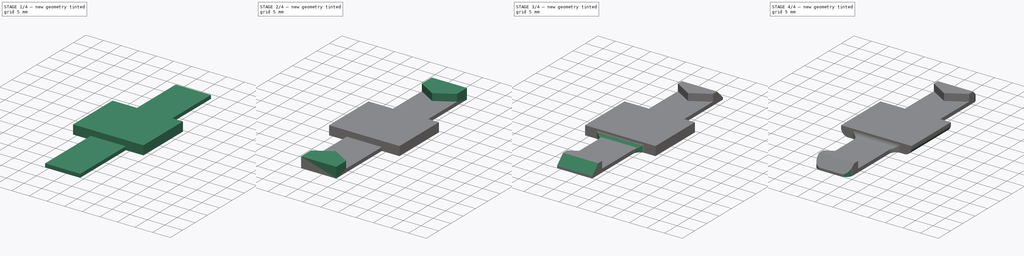
[diagram: build sequence overview — one tinted view per stage of 4, left to right]
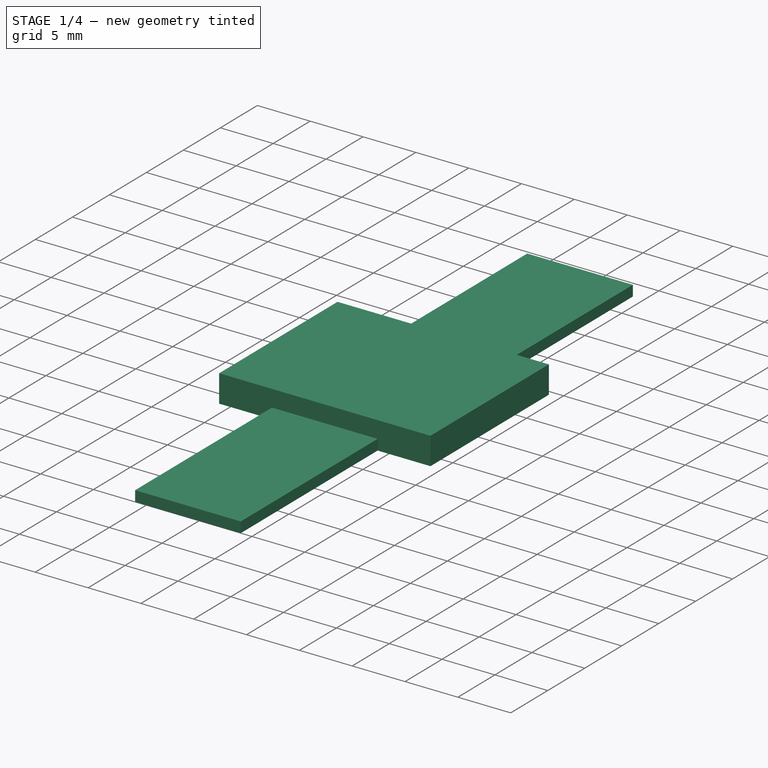
[diagram: stage 1 of 4 — iso view after this stage's code; geometry added in this stage tinted green]
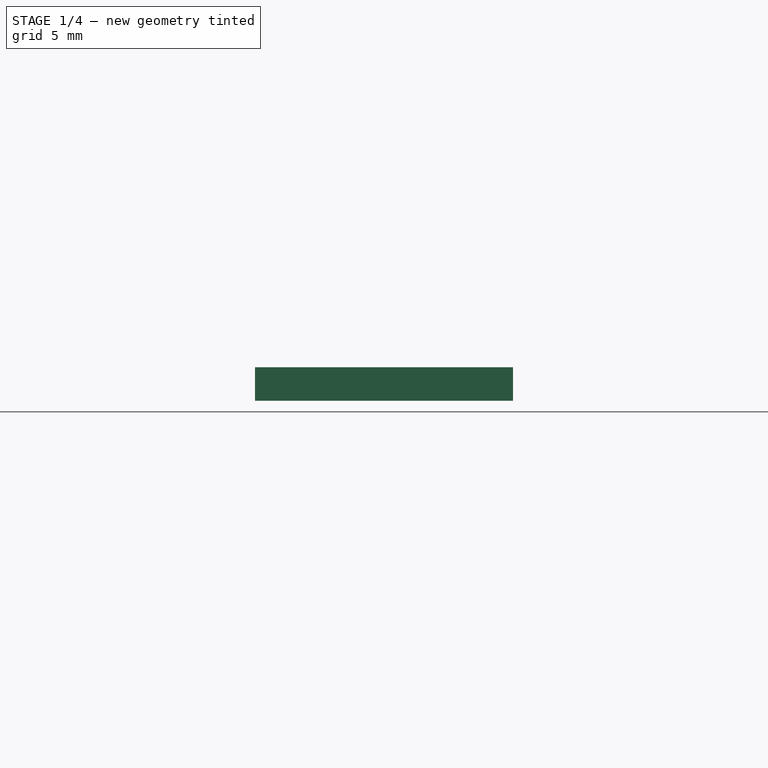
[diagram: stage 1 of 4 — front view after this stage's code; geometry added in this stage tinted green]
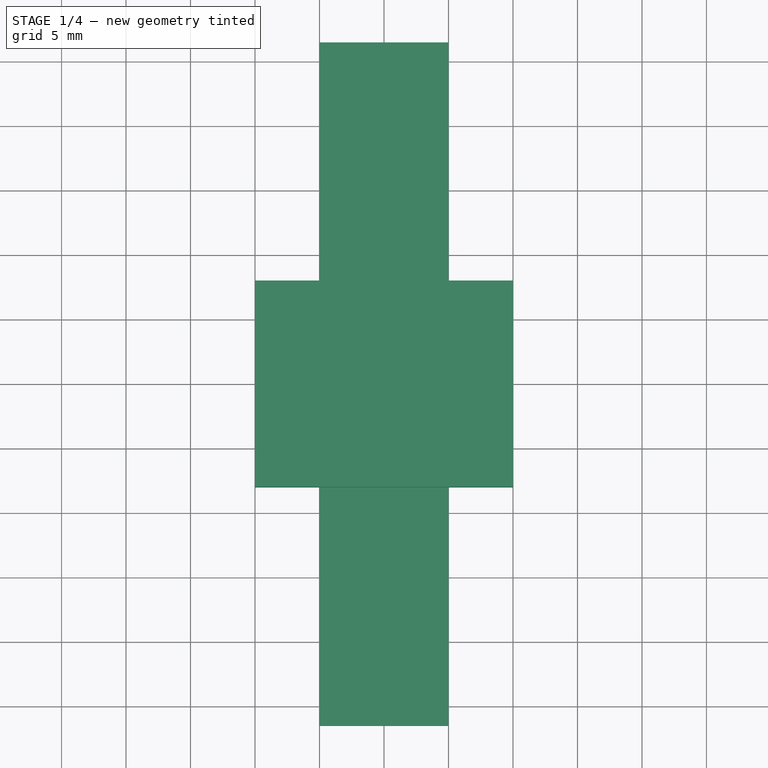
[diagram: stage 1 of 4 — top view after this stage's code; geometry added in this stage tinted green]
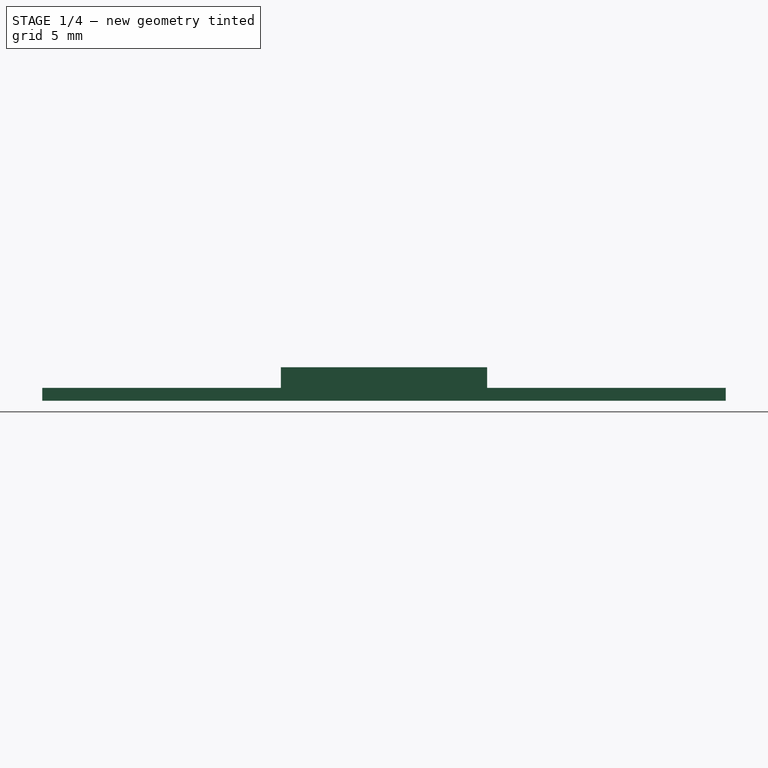
[diagram: stage 1 of 4 — right view after this stage's code; geometry added in this stage tinted green]
FCSTD DOCUMENT  (FreeCAD 0.18.3R)
Label: ipico-speedcross
License: CC-BY 3.0
LicenseURL: http://creativecommons.org/licenses/by/3.0/
objects: PartDesign::Fillet×4, Sketcher::SketchObject×3, PartDesign::Pad×3, PartDesign::Mirrored×1, PartDesign::Chamfer×1, PartDesign::Body×1, App::Part×1
note: 16 computed .brp shape members not serialized (recipe doc carries the construction recipe); baked Part::Feature solids carry a one-line shape summary decoded from their .brp

FEATURE [Sketcher::SketchObject] Sketch
  MapMode = 5
  Support = -> [XY_Plane001]
  sketch-geometry (12):
    g0: LineSegment StartX=-10 StartY=8 StartZ=0 EndX=-10 EndY=-8 EndZ=0
    g1: LineSegment StartX=-10 StartY=-8 StartZ=0 EndX=-5 EndY=-8 EndZ=0
    g2: LineSegment StartX=-5 StartY=-8 StartZ=0 EndX=-5 EndY=-26.5 EndZ=0
    g3: LineSegment StartX=-5 StartY=-26.5 StartZ=0 EndX=5 EndY=-26.5 EndZ=0
    g4: LineSegment StartX=5 StartY=-26.5 StartZ=0 EndX=5 EndY=-8 EndZ=0
    g5: LineSegment StartX=5 StartY=-8 StartZ=0 EndX=10 EndY=-8 EndZ=0
    g6: LineSegment StartX=10 StartY=-8 StartZ=0 EndX=10 EndY=8 EndZ=0
    g7: LineSegment StartX=10 StartY=8 StartZ=0 EndX=5 EndY=8 EndZ=0
    g8: LineSegment StartX=5 StartY=8 StartZ=0 EndX=5 EndY=26.5 EndZ=0
    g9: LineSegment StartX=5 StartY=26.5 StartZ=0 EndX=-5 EndY=26.5 EndZ=0
    g10: LineSegment StartX=-5 StartY=26.5 StartZ=0 EndX=-5 EndY=8 EndZ=0
    g11: LineSegment StartX=-5 StartY=8 StartZ=0 EndX=-10 EndY=8 EndZ=0
  constraints (34):
    c: Coincident(g0,g1)
    c: Horizontal(g1)
    c: Coincident(g1,g2)
    c: Vertical(g2)
    c: Coincident(g2,g3)
    c: Coincident(g3,g4)
    c: Vertical(g4)
    c: Coincident(g4,g5)
    c: Horizontal(g5)
    c: Coincident(g5,g6)
    c: Vertical(g6)
    c: Coincident(g6,g7)
    c: Horizontal(g7)
    c: Coincident(g7,g8)
    c: Vertical(g8)
    c: Coincident(g8,g9)
    c: Horizontal(g9)
    c: Coincident(g9,g10)
    c: Vertical(g10)
    c: Coincident(g10,g11)
    c: Coincident(g11,g0)
    c: Horizontal(g11)
    c: Symmetric(g1,g4,g-2)
    c: Equal(g1,g11)
    c: Equal(g11,g7)
    c: Equal(g7,g5)
    c: Equal(g10,g8)
    c: Equal(g8,g4)
    c: Equal(g4,g2)
    c: DistanceX(g9) = -10
    c: DistanceY(g9,g2) = -53
    c: DistanceY(g0) = -16
    c: Symmetric(g0,g0,g-1)
    c: DistanceX(g0,g6) = 20
FEATURE [PartDesign::Pad] Pad
  Length = 1
  Length2 = 100
  Profile = -> Sketch
  Refine = true
  Type = 0
FEATURE [Sketcher::SketchObject] Sketch001
  ExternalGeometry = -> [Pad]
  MapMode = 5
  Placement = pos=(0,0,1) rot=(0,0,1;0rad)
  Support = -> [Pad]
  sketch-geometry (4):
    g0: LineSegment StartX=-10 StartY=-8 StartZ=0 EndX=10 EndY=-8 EndZ=0
    g1: LineSegment StartX=10 StartY=-8 StartZ=0 EndX=10 EndY=8 EndZ=0
    g2: LineSegment StartX=10 StartY=8 StartZ=0 EndX=-10 EndY=8 EndZ=0
    g3: LineSegment StartX=-10 StartY=8 StartZ=0 EndX=-10 EndY=-8 EndZ=0
  constraints (10):
    c: Coincident(g0,g1)
    c: Coincident(g1,g2)
    c: Coincident(g2,g3)
    c: Coincident(g3,g0)
    c: Horizontal(g0)
    c: Horizontal(g2)
    c: Vertical(g1)
    c: Vertical(g3)
    c: Coincident(g0,g-3)
    c: Coincident(g1,g-4)
FEATURE [PartDesign::Pad] Pad001
  BaseFeature = -> Pad
  Length = 1.6
  Length2 = 100
  Profile = -> Sketch001
  Refine = true
  Type = 0
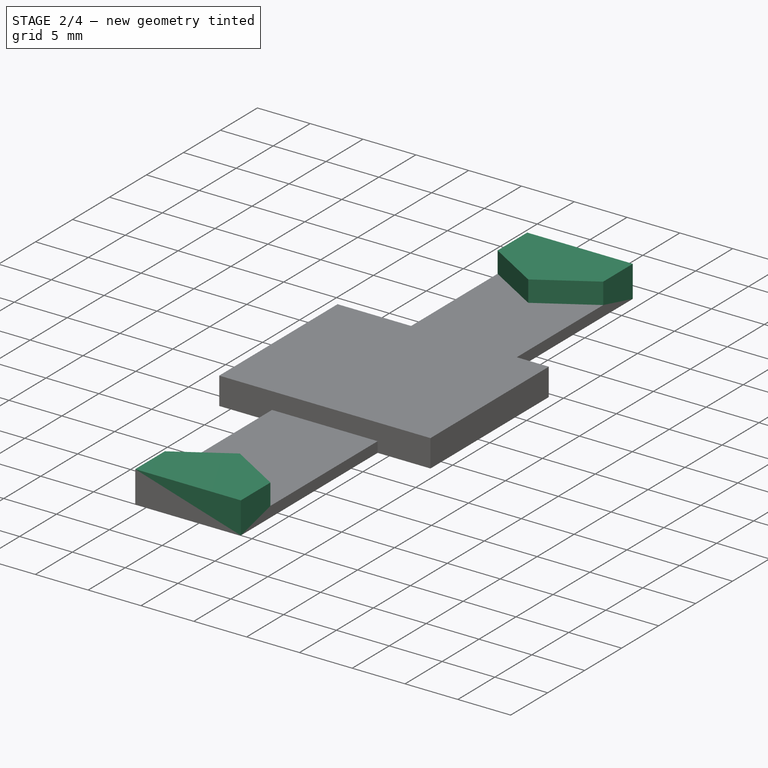
[diagram: stage 2 of 4 — iso view after this stage's code; geometry added in this stage tinted green]
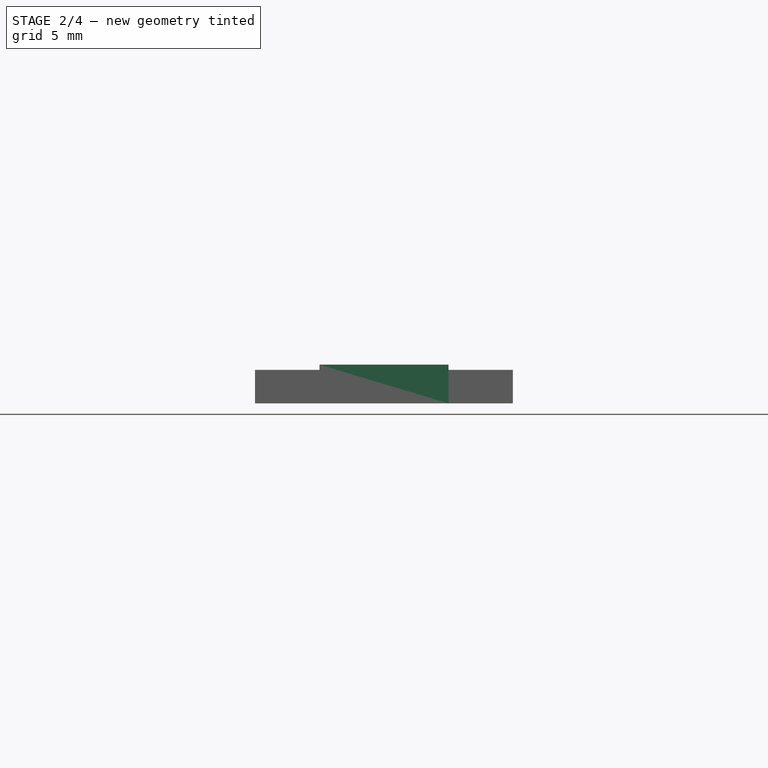
[diagram: stage 2 of 4 — front view after this stage's code; geometry added in this stage tinted green]
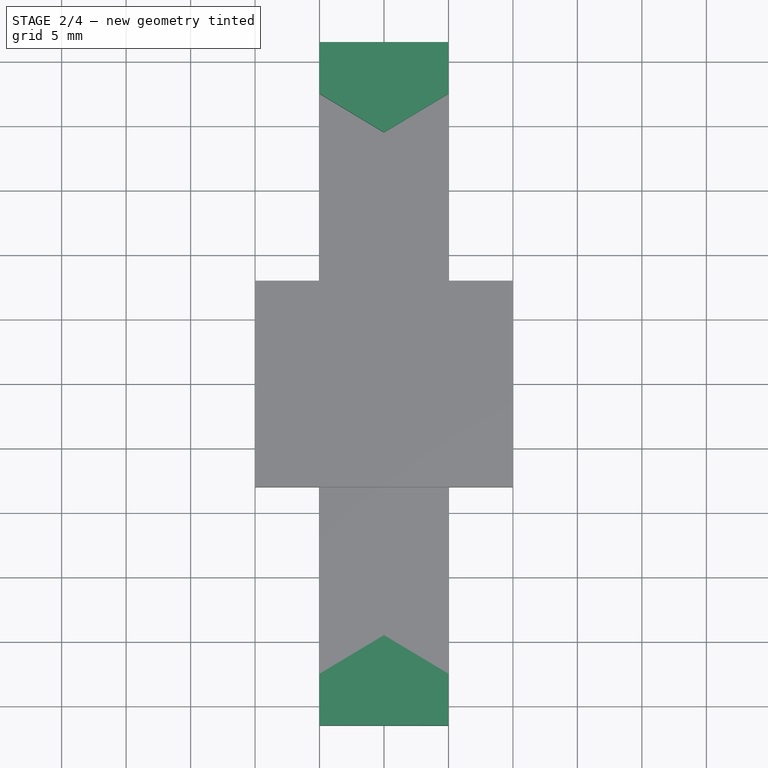
[diagram: stage 2 of 4 — top view after this stage's code; geometry added in this stage tinted green]
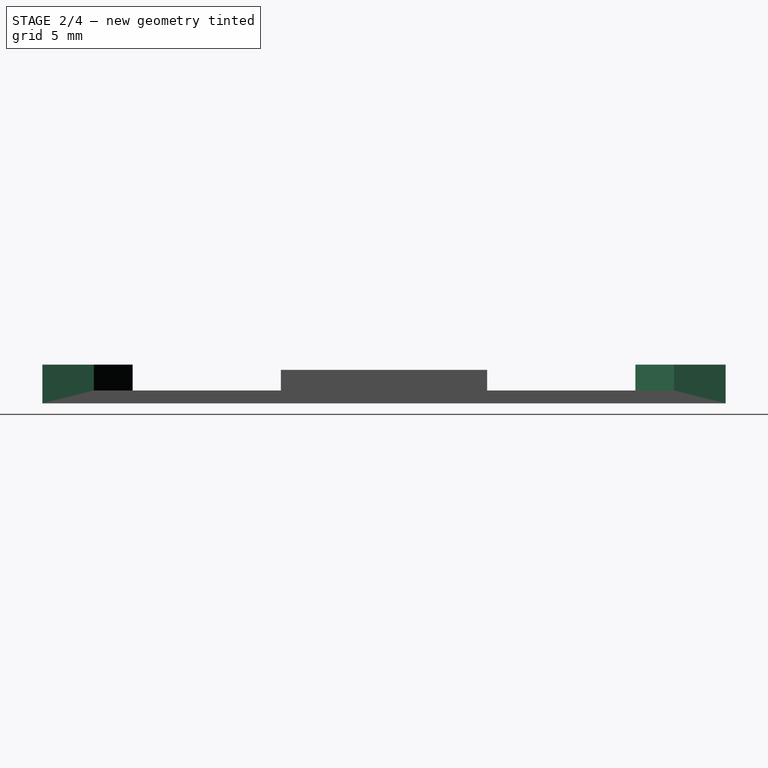
[diagram: stage 2 of 4 — right view after this stage's code; geometry added in this stage tinted green]
FEATURE [Sketcher::SketchObject] Sketch002
  ExternalGeometry = -> [Pad001]
  MapMode = 5
  Placement = pos=(0,0,1) rot=(0,0,1;0rad)
  Support = -> [Pad001]
  sketch-geometry (5):
    g0: LineSegment StartX=-5 StartY=26.5 StartZ=0 EndX=5 EndY=26.5 EndZ=0
    g1: LineSegment StartX=5 StartY=26.5 StartZ=0 EndX=5 EndY=22.5 EndZ=0
    g2: LineSegment StartX=5 StartY=22.5 StartZ=0 EndX=0 EndY=19.5 EndZ=0
    g3: LineSegment StartX=0 StartY=19.5 StartZ=0 EndX=-5 EndY=22.5 EndZ=0
    g4: LineSegment StartX=-5 StartY=26.5 StartZ=0 EndX=-5 EndY=22.5 EndZ=0
  constraints (13):
    c: Coincident(g0,g1)
    c: Coincident(g1,g2)
    c: Coincident(g2,g3)
    c: DistanceY(g4) = -4
    c: DistanceY(g2,g3) = 3
    c: PointOnObject(g2,g-2)
    c: Coincident(g0,g-4)
    c: Coincident(g0,g4)
    c: Coincident(g4,g3)
    c: Coincident(g0,g-3)
    c: Vertical(g4)
    c: Vertical(g1)
    c: Equal(g2,g3)
FEATURE [PartDesign::Pad] Pad002
  BaseFeature = -> Pad001
  Length = 2
  Length2 = 100
  Profile = -> Sketch002
  Refine = true
  Type = 0
FEATURE [PartDesign::Mirrored] Mirrored
  BaseFeature = -> Pad002
  MirrorPlane = -> Sketch002 [H_Axis]
  Originals = -> [Pad002]
  Refine = true
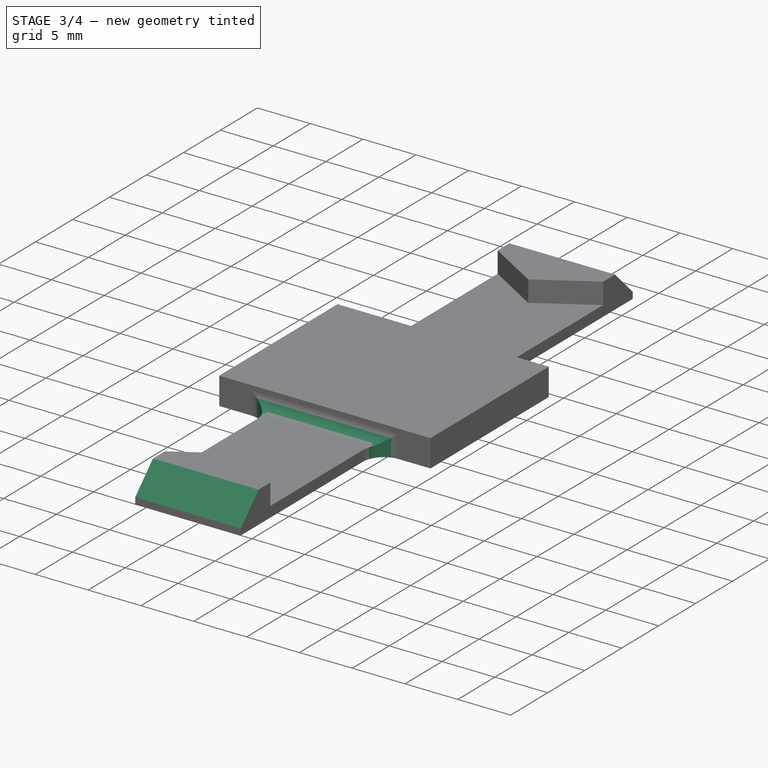
[diagram: stage 3 of 4 — iso view after this stage's code; geometry added in this stage tinted green]
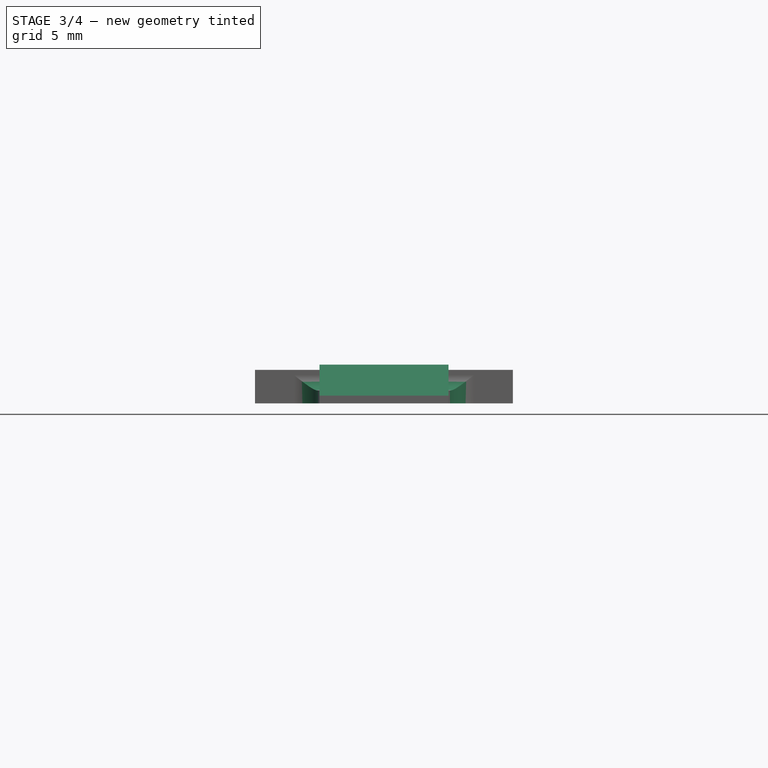
[diagram: stage 3 of 4 — front view after this stage's code; geometry added in this stage tinted green]
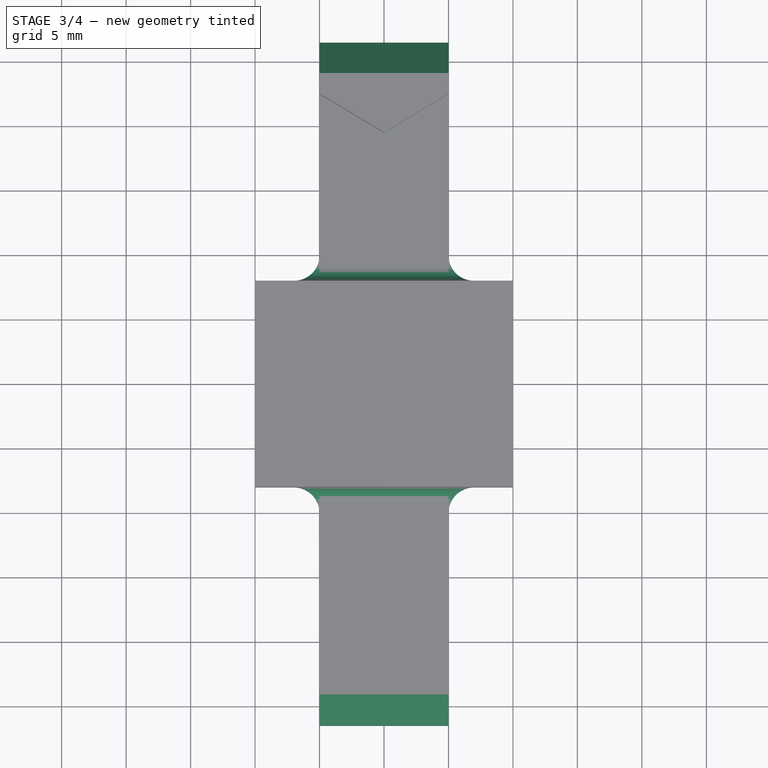
[diagram: stage 3 of 4 — top view after this stage's code; geometry added in this stage tinted green]
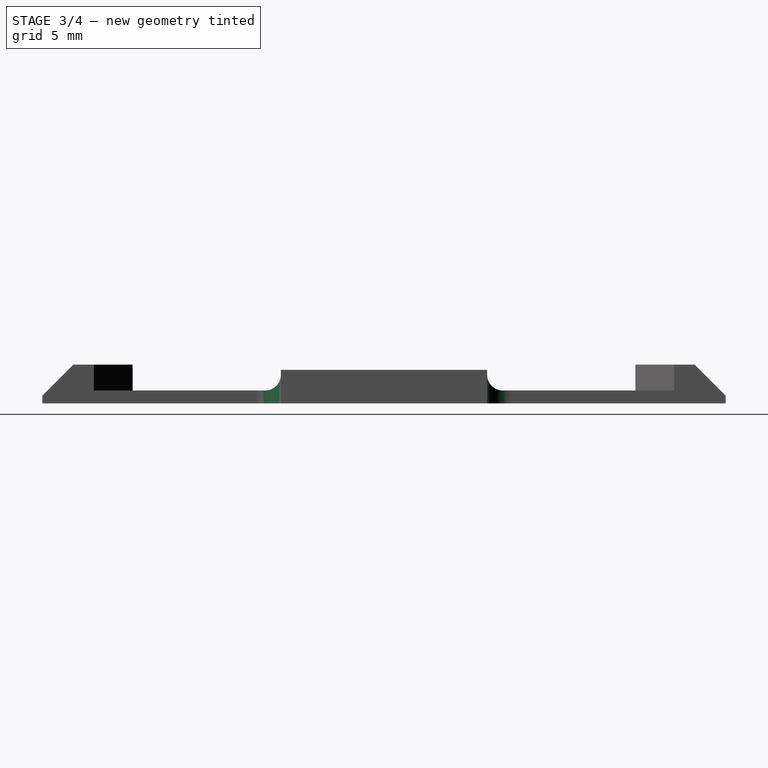
[diagram: stage 3 of 4 — right view after this stage's code; geometry added in this stage tinted green]
FEATURE [PartDesign::Fillet] Fillet
  Base = -> Mirrored [Edge18,Edge16,Edge23,Edge25]
  BaseFeature = -> Mirrored
  Radius = 2
FEATURE [PartDesign::Chamfer] Chamfer
  Base = -> Fillet [Edge54,Edge41]
  BaseFeature = -> Fillet
  Size = 2.4
FEATURE [PartDesign::Fillet] Fillet001
  Base = -> Chamfer [Edge51,Edge38]
  BaseFeature = -> Chamfer
  Radius = 1.2
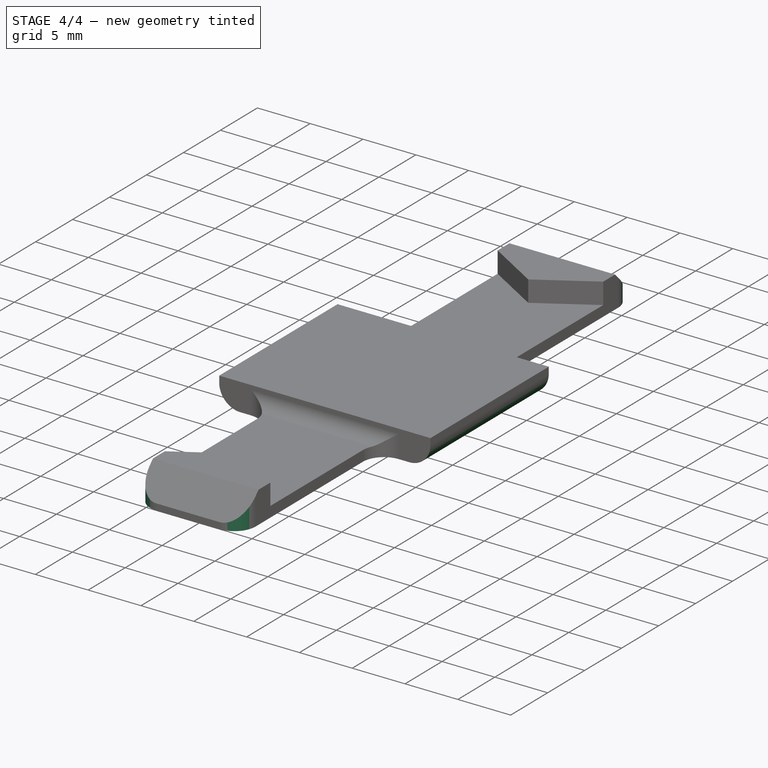
[diagram: stage 4 of 4 — iso view after this stage's code; geometry added in this stage tinted green]
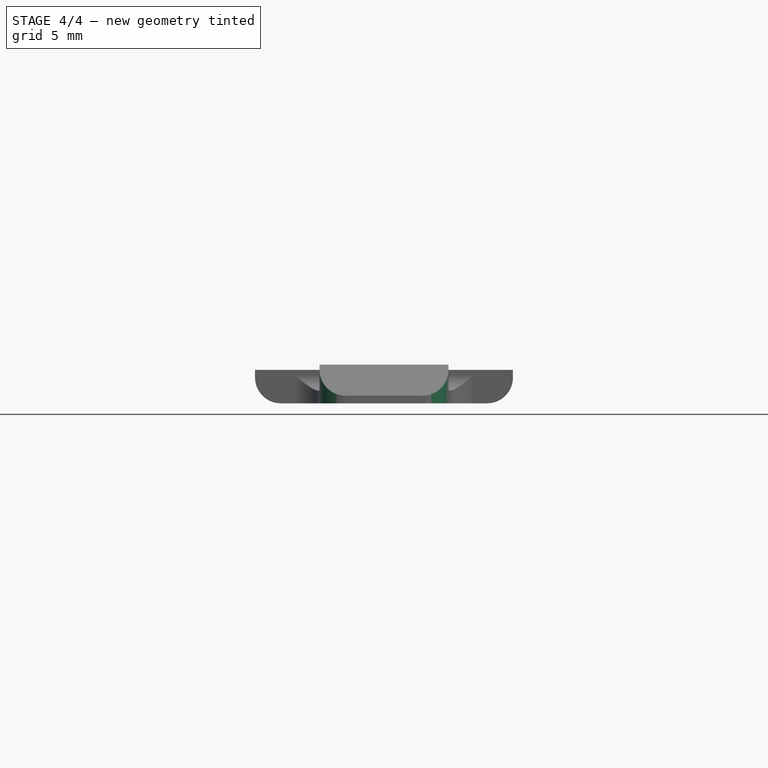
[diagram: stage 4 of 4 — front view after this stage's code; geometry added in this stage tinted green]
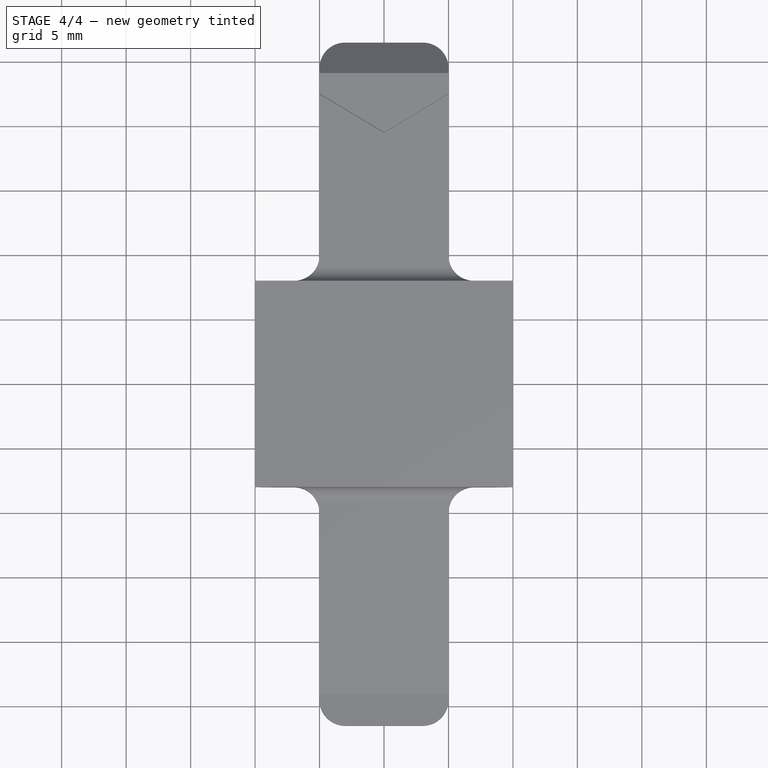
[diagram: stage 4 of 4 — top view after this stage's code; geometry added in this stage tinted green]
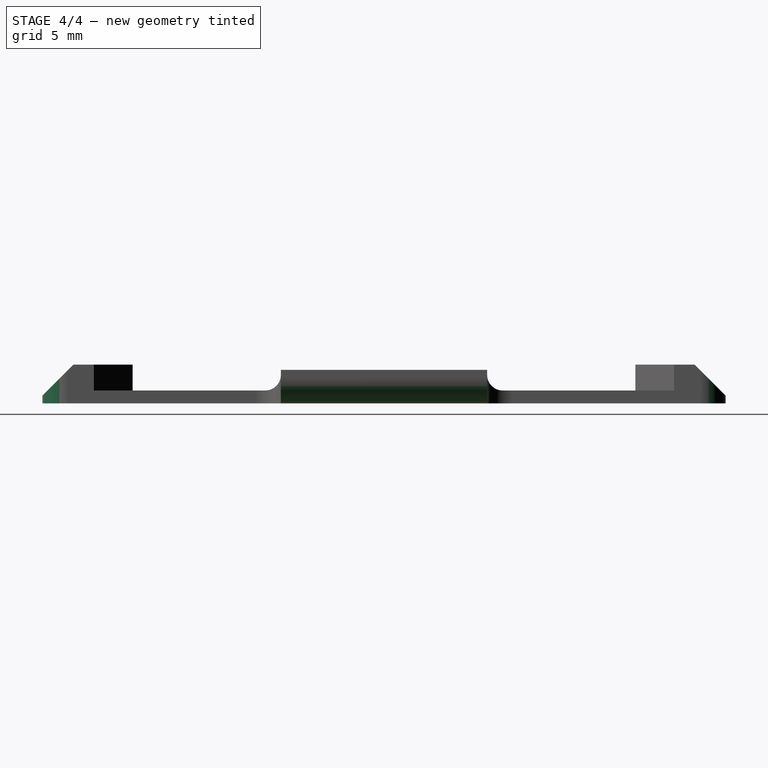
[diagram: stage 4 of 4 — right view after this stage's code; geometry added in this stage tinted green]
FEATURE [PartDesign::Fillet] Fillet002
  Base = -> Fillet001 [Edge40,Edge31]
  BaseFeature = -> Fillet001
  Radius = 2
FEATURE [PartDesign::Fillet] Fillet003
  Base = -> Fillet002 [Edge56,Edge65,Edge66,Edge75]
  BaseFeature = -> Fillet002
  Radius = 2
FEATURE [PartDesign::Body] FilletBody
  Group = -> [Sketch,Pad,Sketch001,Pad001,Sketch002,Pad002,Mirrored,Fillet,Chamfer,Fillet001,Fillet002,Fillet003]
  Origin = -> Origin001
  Tip = -> Fillet003
FEATURE [App::Part] Part
  Group = -> [FilletBody]
  Origin = -> Origin
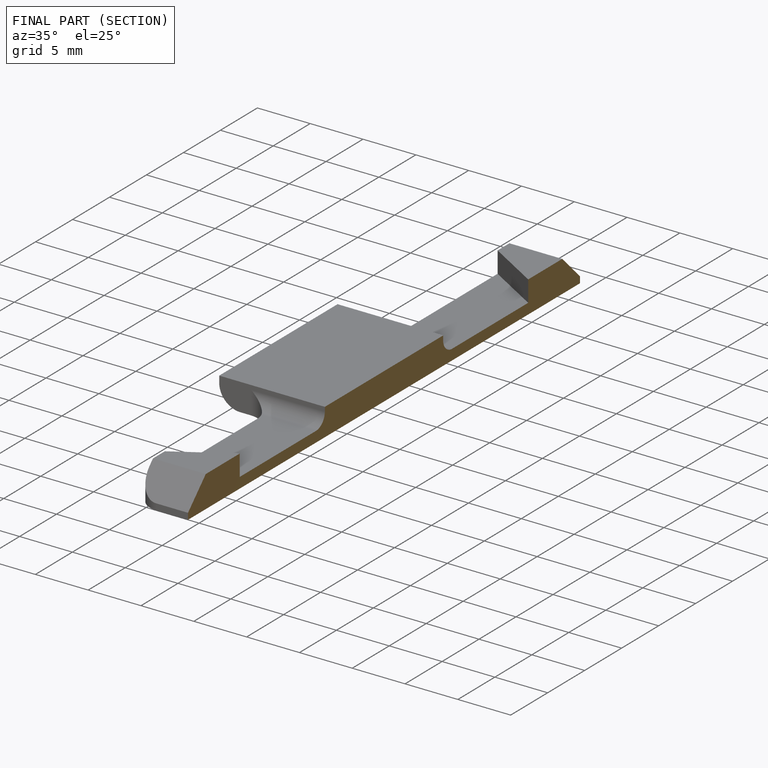
[diagram: finished part — half-section view (interior)]
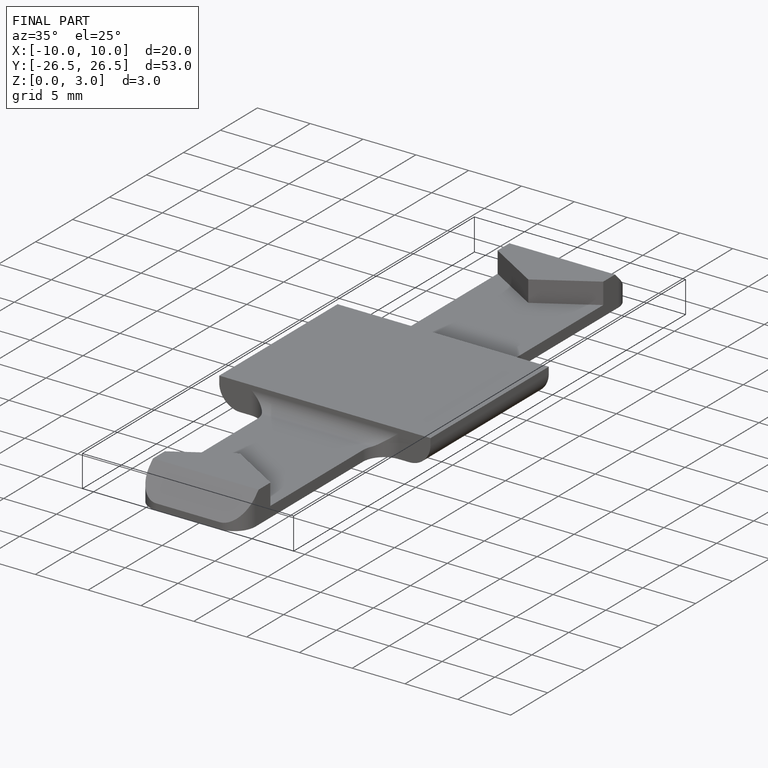
[diagram: finished part — iso view with bounding-box wireframe]
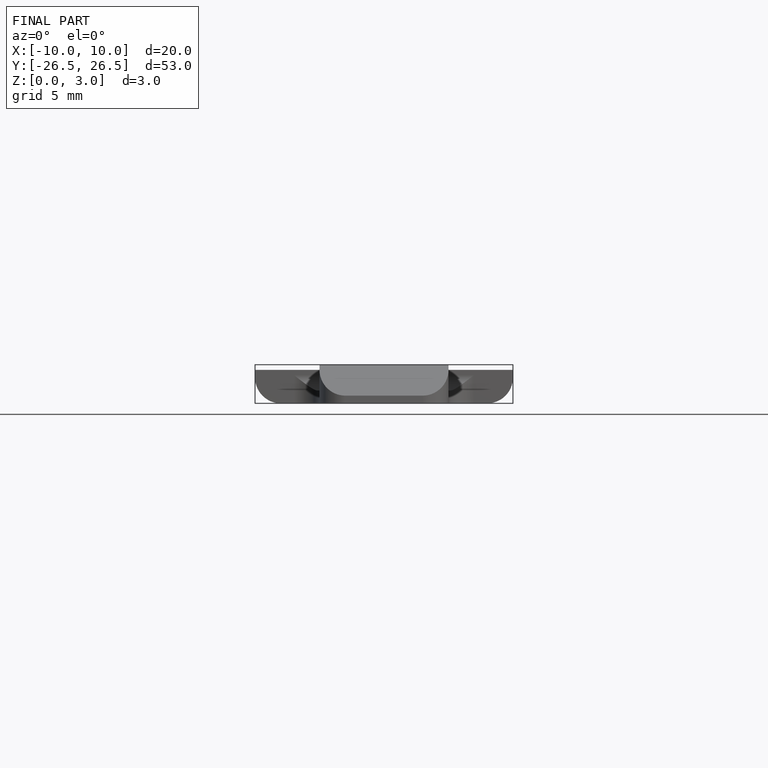
[diagram: finished part — front view with bounding-box wireframe]
